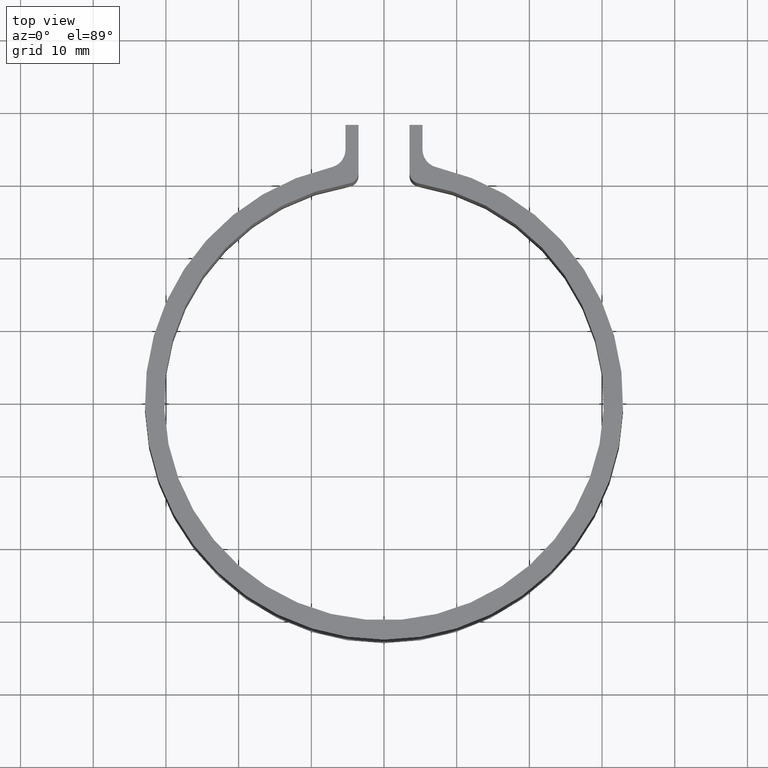
[diagram: clean part render]
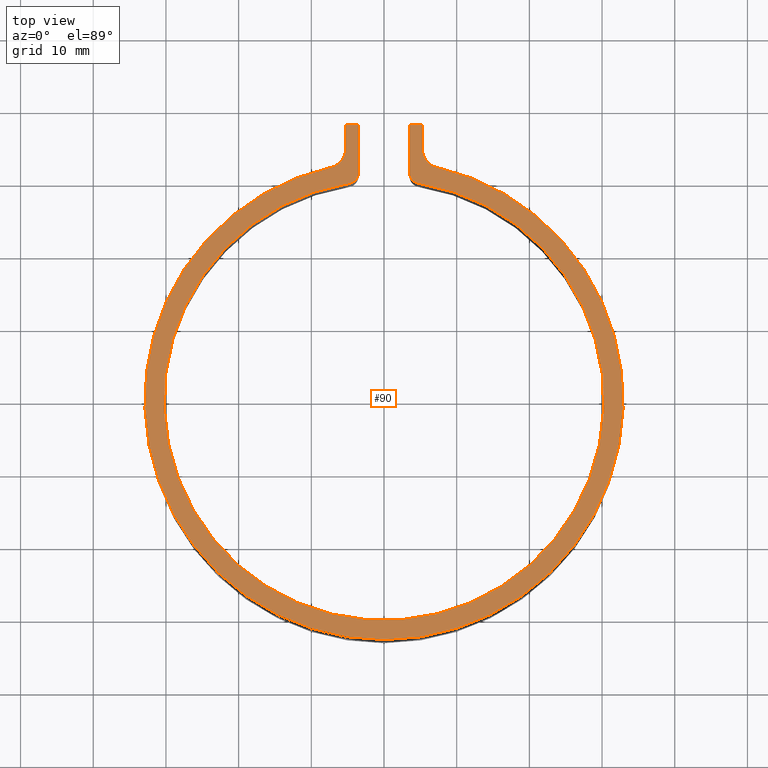
[diagram: same view with one face highlighted and labeled with its STEP entity id]
A machine part, top view. The second image highlights one B-rep face of the part: STEP entity #90.
In plain terms, the highlighted planar face has unit normal (0, 0, 1).
Its self-contained STEP definition (entity closure, byte-faithful):
#90 = ADVANCED_FACE( '', ( #132 ), #133, .T. );
#132 = FACE_OUTER_BOUND( '', #184, .T. );
#133 = PLANE( '', #185 );
#184 = EDGE_LOOP( '', ( #331, #332, #333, #334, #335, #336, #337, #338, #339, #340, #341, #342 ) );
#185 = AXIS2_PLACEMENT_3D( '', #343, #344, #345 );
#331 = ORIENTED_EDGE( '', *, *, #430, .T. );
#332 = ORIENTED_EDGE( '', *, *, #484, .T. );
#333 = ORIENTED_EDGE( '', *, *, #476, .T. );
#334 = ORIENTED_EDGE( '', *, *, #485, .T. );
#335 = ORIENTED_EDGE( '', *, *, #480, .T. );
#336 = ORIENTED_EDGE( '', *, *, #447, .T. );
#337 = ORIENTED_EDGE( '', *, *, #486, .T. );
#338 = ORIENTED_EDGE( '', *, *, #471, .T. );
#339 = ORIENTED_EDGE( '', *, *, #487, .T. );
#340 = ORIENTED_EDGE( '', *, *, #488, .T. );
#341 = ORIENTED_EDGE( '', *, *, #489, .T. );
#342 = ORIENTED_EDGE( '', *, *, #490, .T. );
#343 = CARTESIAN_POINT( '', ( 0.000000000000000, 0.000000000000000, 1.50000000000000 ) );
#344 = DIRECTION( '', ( 0.000000000000000, 0.000000000000000, 1.00000000000000 ) );
#345 = DIRECTION( '', ( 0.000000000000000, 1.00000000000000, 0.000000000000000 ) );
#430 = EDGE_CURVE( '', #505, #503, #506, .T. );
#447 = EDGE_CURVE( '', #538, #536, #539, .T. );
#471 = EDGE_CURVE( '', #578, #579, #580, .F. );
#476 = EDGE_CURVE( '', #586, #587, #588, .T. );
#480 = EDGE_CURVE( '', #594, #538, #595, .T. );
#484 = EDGE_CURVE( '', #503, #586, #600, .T. );
#485 = EDGE_CURVE( '', #587, #594, #601, .T. );
#486 = EDGE_CURVE( '', #536, #578, #602, .T. );
#487 = EDGE_CURVE( '', #579, #603, #604, .T. );
#488 = EDGE_CURVE( '', #603, #605, #606, .F. );
#489 = EDGE_CURVE( '', #605, #607, #608, .T. );
#490 = EDGE_CURVE( '', #607, #505, #609, .T. );
#503 = VERTEX_POINT( '', #624 );
#505 = VERTEX_POINT( '', #627 );
#506 = LINE( '', #628, #629 );
#536 = VERTEX_POINT( '', #668 );
#538 = VERTEX_POINT( '', #671 );
#539 = LINE( '', #672, #673 );
#578 = VERTEX_POINT( '', #727 );
#579 = VERTEX_POINT( '', #728 );
#580 = CIRCLE( '', #729, 2.50000000000000 );
#586 = VERTEX_POINT( '', #738 );
#587 = VERTEX_POINT( '', #739 );
#588 = CIRCLE( '', #740, 30.2500000000000 );
#594 = VERTEX_POINT( '', #748 );
#595 = LINE( '', #749, #750 );
#600 = CIRCLE( '', #757, 1.50000000000000 );
#601 = CIRCLE( '', #758, 1.50000000000000 );
#602 = LINE( '', #759, #760 );
#603 = VERTEX_POINT( '', #761 );
#604 = CIRCLE( '', #762, 32.9000000000000 );
#605 = VERTEX_POINT( '', #763 );
#606 = CIRCLE( '', #764, 2.50000000000000 );
#607 = VERTEX_POINT( '', #765 );
#608 = LINE( '', #766, #767 );
#609 = LINE( '', #768, #769 );
#624 = CARTESIAN_POINT( '', ( 3.50000000000000, 31.3538275175456, 1.50000000000000 ) );
#627 = CARTESIAN_POINT( '', ( 3.49999999999999, 37.9315111874219, 1.50000000000000 ) );
#628 = CARTESIAN_POINT( '', ( 3.50000000000000, 37.9315111874219, 1.50000000000000 ) );
#629 = VECTOR( '', #790, 1000.00000000000 );
#668 = CARTESIAN_POINT( '', ( -5.29999999999999, 37.9315111874219, 1.50000000000000 ) );
#671 = CARTESIAN_POINT( '', ( -3.50000000000000, 37.9315111874219, 1.50000000000000 ) );
#672 = CARTESIAN_POINT( '', ( -3.50000000000000, 37.9315111874219, 1.50000000000000 ) );
#673 = VECTOR( '', #819, 1000.00000000000 );
#727 = CARTESIAN_POINT( '', ( -5.30000000000000, 34.5299869678516, 1.50000000000000 ) );
#728 = CARTESIAN_POINT( '', ( -7.24915254237288, 32.0914285661671, 1.50000000000000 ) );
#729 = AXIS2_PLACEMENT_3D( '', #859, #860, #861 );
#738 = CARTESIAN_POINT( '', ( 4.76377952755906, 29.8725443277403, 1.50000000000000 ) );
#739 = CARTESIAN_POINT( '', ( -4.76377952755905, 29.8725443277403, 1.50000000000000 ) );
#740 = AXIS2_PLACEMENT_3D( '', #868, #869, #870 );
#748 = CARTESIAN_POINT( '', ( -3.50000000000000, 31.3538275175456, 1.50000000000000 ) );
#749 = CARTESIAN_POINT( '', ( -3.50000000000000, 30.0468384360152, 1.50000000000000 ) );
#750 = VECTOR( '', #876, 1000.00000000000 );
#757 = AXIS2_PLACEMENT_3D( '', #882, #883, #884 );
#758 = AXIS2_PLACEMENT_3D( '', #885, #886, #887 );
#759 = CARTESIAN_POINT( '', ( -5.30000000000000, 37.9315111874219, 1.50000000000000 ) );
#760 = VECTOR( '', #888, 1000.00000000000 );
#761 = CARTESIAN_POINT( '', ( 7.24915254237288, 32.0914285661671, 1.50000000000000 ) );
#762 = AXIS2_PLACEMENT_3D( '', #889, #890, #891 );
#763 = CARTESIAN_POINT( '', ( 5.30000000000000, 34.5299869678516, 1.50000000000000 ) );
#764 = AXIS2_PLACEMENT_3D( '', #892, #893, #894 );
#765 = CARTESIAN_POINT( '', ( 5.30000000000000, 37.9315111874219, 1.50000000000000 ) );
#766 = CARTESIAN_POINT( '', ( 5.30000000000000, 32.4702941163150, 1.50000000000000 ) );
#767 = VECTOR( '', #895, 1000.00000000000 );
#768 = CARTESIAN_POINT( '', ( 5.30000000000000, 37.9315111874219, 1.50000000000000 ) );
#769 = VECTOR( '', #896, 1000.00000000000 );
#790 = DIRECTION( '', ( -6.12303176911189E-017, -1.00000000000000, 0.000000000000000 ) );
#819 = DIRECTION( '', ( -1.00000000000000, 0.000000000000000, 0.000000000000000 ) );
#859 = CARTESIAN_POINT( '', ( -7.80000000000000, 34.5299869678516, 1.50000000000000 ) );
#860 = DIRECTION( '', ( 0.000000000000000, 0.000000000000000, 1.00000000000000 ) );
#861 = DIRECTION( '', ( 1.00000000000000, 0.000000000000000, 0.000000000000000 ) );
#868 = CARTESIAN_POINT( '', ( 0.000000000000000, 0.000000000000000, 1.50000000000000 ) );
#869 = DIRECTION( '', ( 0.000000000000000, 0.000000000000000, -1.00000000000000 ) );
#870 = DIRECTION( '', ( 1.00000000000000, 0.000000000000000, 0.000000000000000 ) );
#876 = DIRECTION( '', ( 6.12303176911189E-017, 1.00000000000000, 0.000000000000000 ) );
#882 = CARTESIAN_POINT( '', ( 5.00000000000000, 31.3538275175456, 1.50000000000000 ) );
#883 = DIRECTION( '', ( 0.000000000000000, 0.000000000000000, 1.00000000000000 ) );
#884 = DIRECTION( '', ( 1.00000000000000, 0.000000000000000, 0.000000000000000 ) );
#885 = CARTESIAN_POINT( '', ( -4.99999999999999, 31.3538275175456, 1.50000000000000 ) );
#886 = DIRECTION( '', ( 0.000000000000000, 0.000000000000000, 1.00000000000000 ) );
#887 = DIRECTION( '', ( 1.00000000000000, 0.000000000000000, 0.000000000000000 ) );
#888 = DIRECTION( '', ( -6.12303176911189E-017, -1.00000000000000, 0.000000000000000 ) );
#889 = CARTESIAN_POINT( '', ( 0.000000000000000, 0.000000000000000, 1.50000000000000 ) );
#890 = DIRECTION( '', ( 0.000000000000000, 0.000000000000000, 1.00000000000000 ) );
#891 = DIRECTION( '', ( 1.00000000000000, 0.000000000000000, 0.000000000000000 ) );
#892 = CARTESIAN_POINT( '', ( 7.80000000000000, 34.5299869678516, 1.50000000000000 ) );
#893 = DIRECTION( '', ( 0.000000000000000, 0.000000000000000, 1.00000000000000 ) );
#894 = DIRECTION( '', ( 1.00000000000000, 0.000000000000000, 0.000000000000000 ) );
#895 = DIRECTION( '', ( 6.12303176911189E-017, 1.00000000000000, 0.000000000000000 ) );
#896 = DIRECTION( '', ( -1.00000000000000, 0.000000000000000, 0.000000000000000 ) );